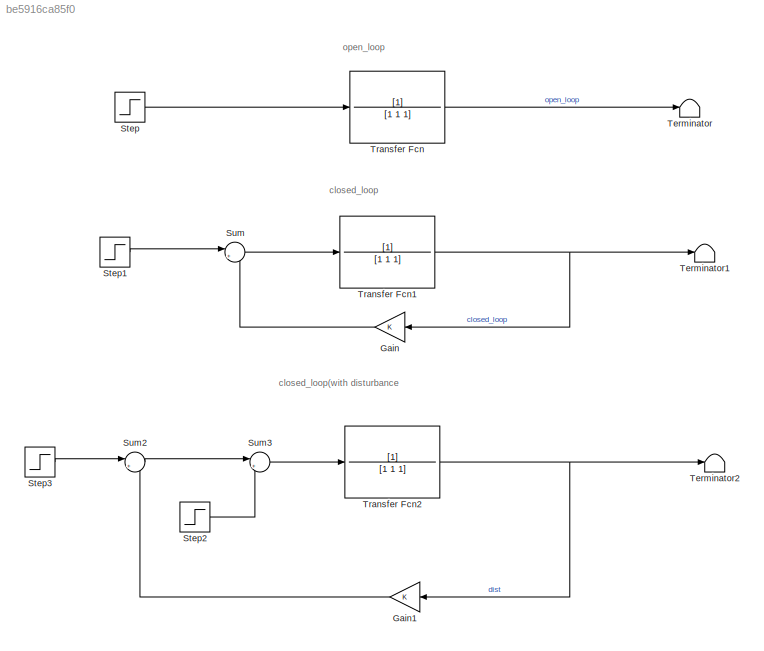
MODEL slx_be5916ca85f0
KIND model
CONFIG AbsTol = auto
CONFIG EnableMultiTasking = off
CONFIG FixedStep = auto
CONFIG MaxStep = 1e-3
CONFIG MinStep = auto
CONFIG RelTol = 1e-3
CONFIG SampleTimeConstraint = Unconstrained
CONFIG SolverName = VariableStepAuto
CONFIG StartTime = 0.0
CONFIG StopTime = 10.0
BLOCK [Gain] Gain
  NameLocation = top
BLOCK [Gain] Gain1
  NameLocation = top
BLOCK [Step] Step
  SampleTime = 0
BLOCK [Step] Step1
  SampleTime = 0
BLOCK [Step] Step2
  After = 0.2
  SampleTime = 0
  Time = 4
BLOCK [Step] Step3
  SampleTime = 0
BLOCK [Sum] Sum
  Inputs = |+-
BLOCK [Sum] Sum2
  Inputs = |+-
BLOCK [Sum] Sum3
  Inputs = |+-
BLOCK [Terminator] Terminator
BLOCK [Terminator] Terminator1
BLOCK [Terminator] Terminator2
BLOCK [TransferFcn] Transfer Fcn
  Denominator = [1 1 1]
BLOCK [TransferFcn] Transfer Fcn1
  Denominator = [1 1 1]
BLOCK [TransferFcn] Transfer Fcn2
  Denominator = [1 1 1]
ANNOTATION (root): closed_loop(with disturbance
ANNOTATION (root): closed_loop
ANNOTATION (root): open_loop
LINE Gain1:1 -> Sum2:2
LINE Gain:1 -> Sum:2
LINE Step1:1 -> Sum:1
LINE Step2:1 -> Sum3:2
LINE Step3:1 -> Sum2:1
LINE Step:1 -> Transfer Fcn:1
LINE Sum2:1 -> Sum3:1
LINE Sum3:1 -> Transfer Fcn2:1
LINE Sum:1 -> Transfer Fcn1:1
NET Transfer Fcn1:1 -> Gain:1, Terminator1:1
NET Transfer Fcn2:1 -> Gain1:1, Terminator2:1
LINE Transfer Fcn:1 -> Terminator:1
note: NET lines group one-source signal fan-out (src -> all destinations, sorted); 1:1 wires keep LINE
